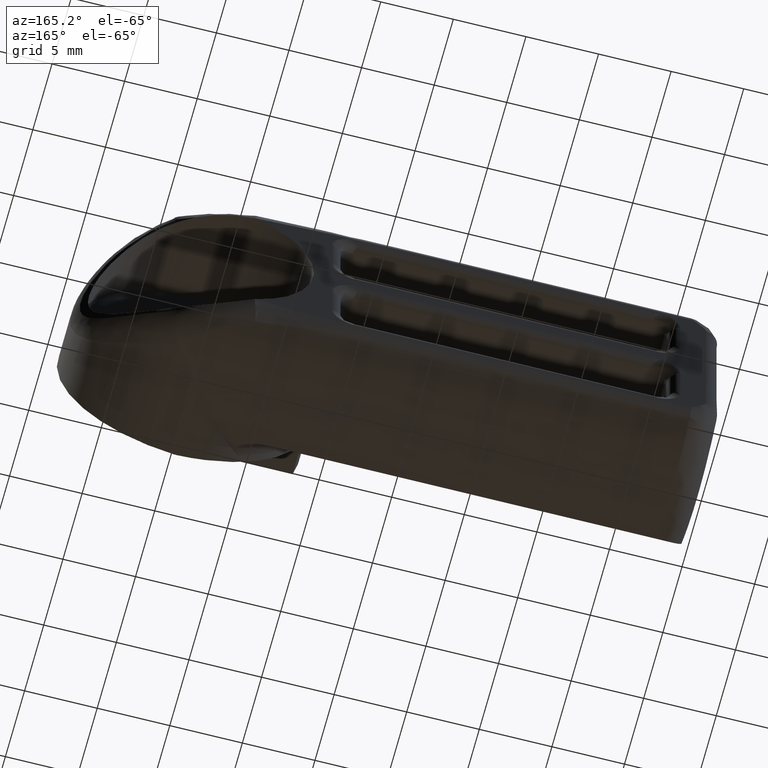
[diagram: clean part render]
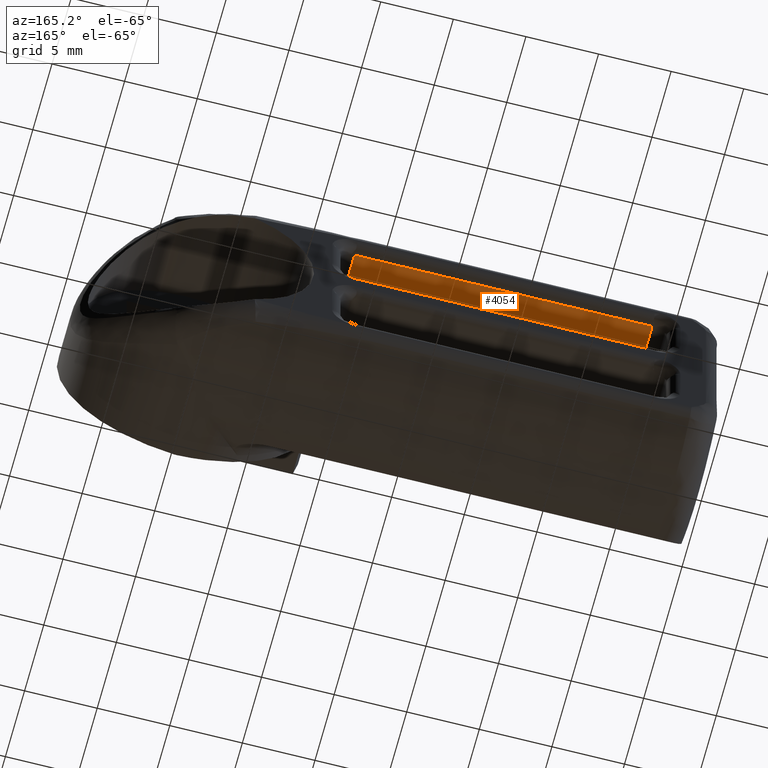
[diagram: same view with one face highlighted and labeled with its STEP entity id]
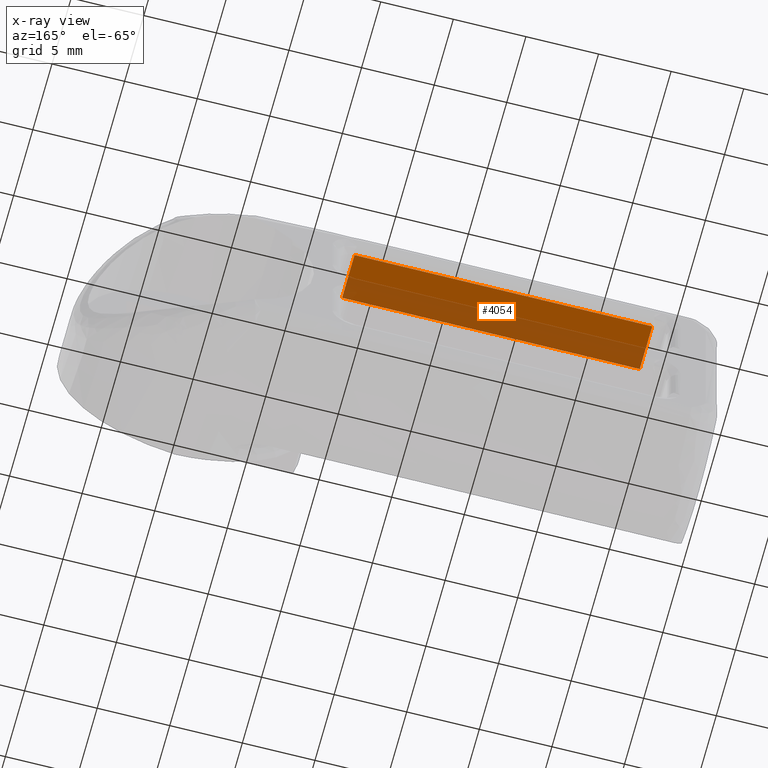
[diagram: x-ray of the same camera — body ghosted, the highlighted face saturated]
A machine part, auxiliary view. The second image highlights one B-rep face of the part: STEP entity #4054.
The next image is the same camera in x-ray: the body ghosted, the highlighted face saturated — about 49% of this face is hidden behind the body in this view.
In plain terms, the highlighted face is a freeform B-spline surface patch.
Its self-contained STEP definition (entity closure, byte-faithful):
#2360=CARTESIAN_POINT('',(-30.500001496169698,-0.750000000000028,6.000000284984680));
#2361=VERTEX_POINT('',#2360);
#2468=CARTESIAN_POINT('',(-10.000000427477000,-0.750000000000028,6.000000284984680));
#2469=VERTEX_POINT('',#2468);
#2485=CARTESIAN_POINT('',(-30.500001496169698,-0.750000000000028,6.000000284984680));
#2486=CARTESIAN_POINT('',(-10.000000427477000,-0.750000000000028,6.000000284984680));
#2487=QUASI_UNIFORM_CURVE('',1,(#2485,#2486),.UNSPECIFIED.,.F.,.U.);
#2488=EDGE_CURVE('',#2361,#2469,#2487,.T.);
#2818=CARTESIAN_POINT('',(-10.000000427477000,-4.0,6.000000284984680));
#2819=VERTEX_POINT('',#2818);
#2938=CARTESIAN_POINT('',(-30.500001496169698,-4.0,6.000000284984680));
#2939=VERTEX_POINT('',#2938);
#2953=CARTESIAN_POINT('',(-10.000000427477000,-4.0,6.000000284984680));
#2954=CARTESIAN_POINT('',(-30.500001496169698,-4.0,6.000000284984680));
#2955=QUASI_UNIFORM_CURVE('',1,(#2953,#2954),.UNSPECIFIED.,.F.,.U.);
#2956=EDGE_CURVE('',#2819,#2939,#2955,.T.);
#2981=CARTESIAN_POINT('',(-10.000000427477000,-0.750000000000028,6.000000284984680));
#2982=CARTESIAN_POINT('',(-10.000000427477000,-4.0,6.000000284984680));
#2983=QUASI_UNIFORM_CURVE('',1,(#2981,#2982),.UNSPECIFIED.,.F.,.U.);
#2984=EDGE_CURVE('',#2469,#2819,#2983,.T.);
#3058=CARTESIAN_POINT('',(-30.500001496169698,-4.0,6.000000284984680));
#3059=CARTESIAN_POINT('',(-30.500001496169698,-0.750000000000028,6.000000284984680));
#3060=QUASI_UNIFORM_CURVE('',1,(#3058,#3059),.UNSPECIFIED.,.F.,.U.);
#3061=EDGE_CURVE('',#2939,#2361,#3060,.T.);
#4043=CARTESIAN_POINT('',(-31.523977087135950,-4.162337493700869,6.000000284984680));
#4044=CARTESIAN_POINT('',(-8.976024836510751,-4.162337493700869,6.000000284984680));
#4045=CARTESIAN_POINT('',(-31.523977087135950,-0.587662419127367,6.000000284984680));
#4046=CARTESIAN_POINT('',(-8.976024836510751,-0.587662419127367,6.000000284984680));
#4047=B_SPLINE_SURFACE_WITH_KNOTS('',1,1,((#4043,#4045),(#4044,#4046)),.UNSPECIFIED.,.F.,.F.,.U.,(2,2),(2,2),(0.0,22.547952250625201),(0.0,3.574675074573501),.UNSPECIFIED.);
#4048=ORIENTED_EDGE('',*,*,#3061,.T.);
#4049=ORIENTED_EDGE('',*,*,#2488,.T.);
#4050=ORIENTED_EDGE('',*,*,#2984,.T.);
#4051=ORIENTED_EDGE('',*,*,#2956,.T.);
#4052=EDGE_LOOP('',(#4048,#4049,#4050,#4051));
#4053=FACE_OUTER_BOUND('',#4052,.T.);
#4054=ADVANCED_FACE('',(#4053),#4047,.F.);